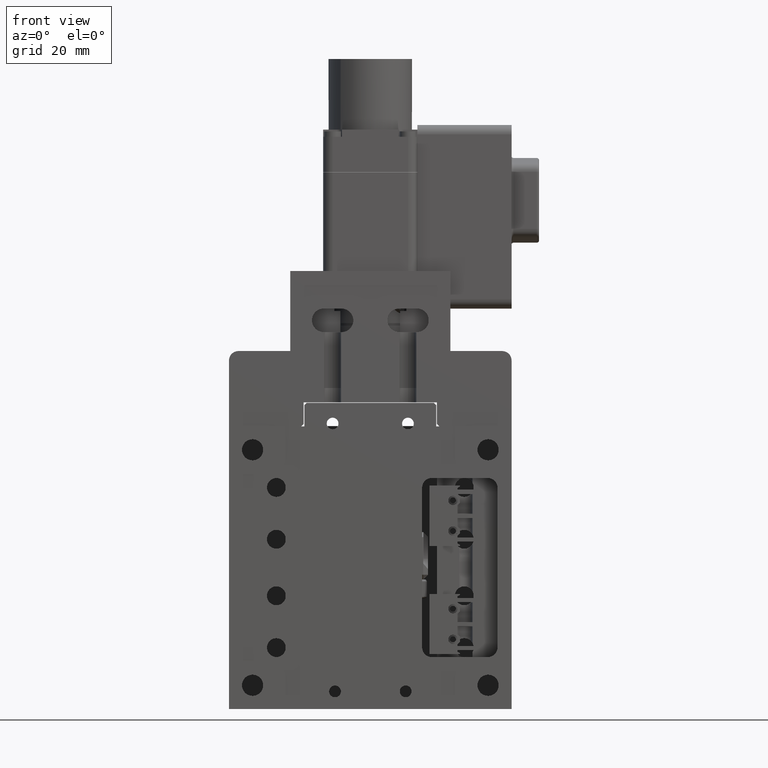
[diagram: clean part render]
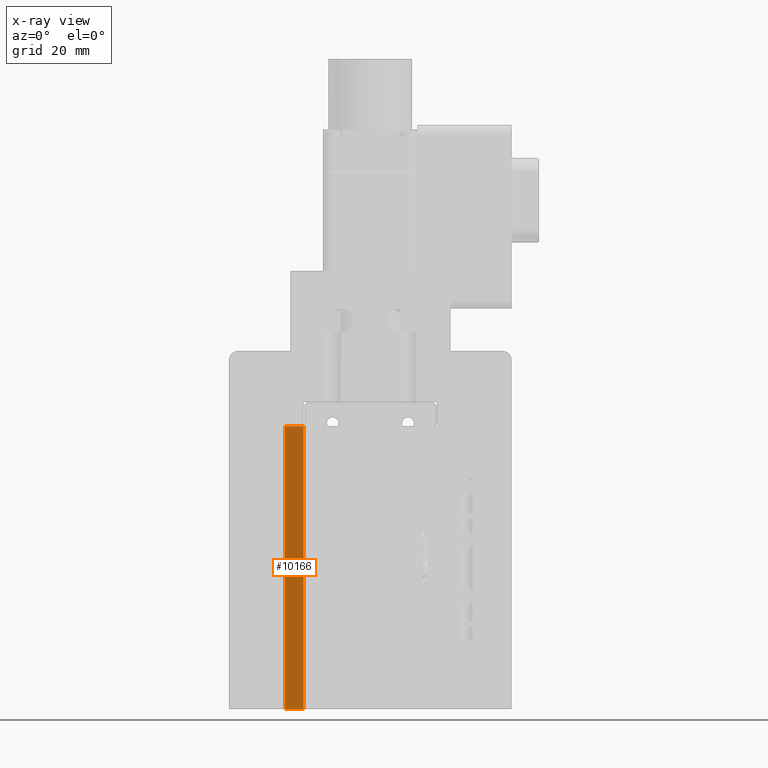
[diagram: x-ray — body ghosted, one internal face saturated and labeled with its STEP entity id]
A machine part, front view, then the same camera in x-ray: the body is ghosted and one INTERNAL B-rep face — a face not visible from any outside direction — is saturated and labeled: STEP entity #10166.
In plain terms, the highlighted planar face has unit normal (0, 1, 0).
Its self-contained STEP definition (entity closure, byte-faithful):
#258 = VECTOR ( 'NONE', #15762, 1000.000000000000000 ) ;
#316 = VECTOR ( 'NONE', #18132, 1000.000000000000000 ) ;
#349 = VERTEX_POINT ( 'NONE', #6404 ) ;
#481 = LINE ( 'NONE', #11990, #11881 ) ;
#581 = DIRECTION ( 'NONE',  ( 0.000000000000000000, 1.000000000000000000, 0.000000000000000000 ) ) ;
#709 = VERTEX_POINT ( 'NONE', #16359 ) ;
#2333 = AXIS2_PLACEMENT_3D ( 'NONE', #6574, #581, #9294 ) ;
#2349 = VERTEX_POINT ( 'NONE', #8873 ) ;
#2590 = VECTOR ( 'NONE', #7624, 1000.000000000000000 ) ;
#3183 = ORIENTED_EDGE ( 'NONE', *, *, #12379, .F. ) ;
#3329 = CARTESIAN_POINT ( 'NONE',  ( -20.74171959880752425, 6.001812454013962572, 32.50000000000000000 ) ) ;
#3379 = ORIENTED_EDGE ( 'NONE', *, *, #8365, .T. ) ;
#4778 = ORIENTED_EDGE ( 'NONE', *, *, #11517, .F. ) ;
#5719 = EDGE_CURVE ( 'NONE', #8633, #709, #13743, .T. ) ;
#6404 = CARTESIAN_POINT ( 'NONE',  ( -16.74171959880752425, 6.001812454013962572, 92.50000000000000000 ) ) ;
#6574 = CARTESIAN_POINT ( 'NONE',  ( -20.74171959880752425, 6.001812454013962572, 32.50000000000000000 ) ) ;
#7142 = CARTESIAN_POINT ( 'NONE',  ( -20.74171959880752425, 6.001812454013962572, 32.50000000000000000 ) ) ;
#7557 = ORIENTED_EDGE ( 'NONE', *, *, #5719, .T. ) ;
#7624 = DIRECTION ( 'NONE',  ( -1.000000000000000000, -0.000000000000000000, -0.000000000000000000 ) ) ;
#8365 = EDGE_CURVE ( 'NONE', #2349, #8633, #10257, .T. ) ;
#8633 = VERTEX_POINT ( 'NONE', #7142 ) ;
#8873 = CARTESIAN_POINT ( 'NONE',  ( -16.74171959880752425, 6.001812454013962572, 32.50000000000000000 ) ) ;
#9294 = DIRECTION ( 'NONE',  ( 0.000000000000000000, -0.000000000000000000, 1.000000000000000000 ) ) ;
#9344 = EDGE_LOOP ( 'NONE', ( #7557, #3183, #4778, #3379 ) ) ;
#10166 = ADVANCED_FACE ( 'NONE', ( #14780 ), #12088, .T. ) ;
#10257 = LINE ( 'NONE', #3329, #2590 ) ;
#11517 = EDGE_CURVE ( 'NONE', #2349, #349, #481, .T. ) ;
#11881 = VECTOR ( 'NONE', #11884, 1000.000000000000000 ) ;
#11884 = DIRECTION ( 'NONE',  ( 0.000000000000000000, 0.000000000000000000, 1.000000000000000000 ) ) ;
#11990 = CARTESIAN_POINT ( 'NONE',  ( -16.74171959880752425, 6.001812454013962572, 32.50000000000000000 ) ) ;
#12088 = PLANE ( 'NONE',  #2333 ) ;
#12379 = EDGE_CURVE ( 'NONE', #349, #709, #14460, .T. ) ;
#13743 = LINE ( 'NONE', #16724, #316 ) ;
#14375 = CARTESIAN_POINT ( 'NONE',  ( -20.74171959880752425, 6.001812454013962572, 92.50000000000000000 ) ) ;
#14460 = LINE ( 'NONE', #14375, #258 ) ;
#14780 = FACE_OUTER_BOUND ( 'NONE', #9344, .T. ) ;
#15762 = DIRECTION ( 'NONE',  ( -1.000000000000000000, -0.000000000000000000, -0.000000000000000000 ) ) ;
#16359 = CARTESIAN_POINT ( 'NONE',  ( -20.74171959880752425, 6.001812454013962572, 92.50000000000000000 ) ) ;
#16724 = CARTESIAN_POINT ( 'NONE',  ( -20.74171959880752425, 6.001812454013962572, 32.50000000000000000 ) ) ;
#18132 = DIRECTION ( 'NONE',  ( 0.000000000000000000, 0.000000000000000000, 1.000000000000000000 ) ) ;